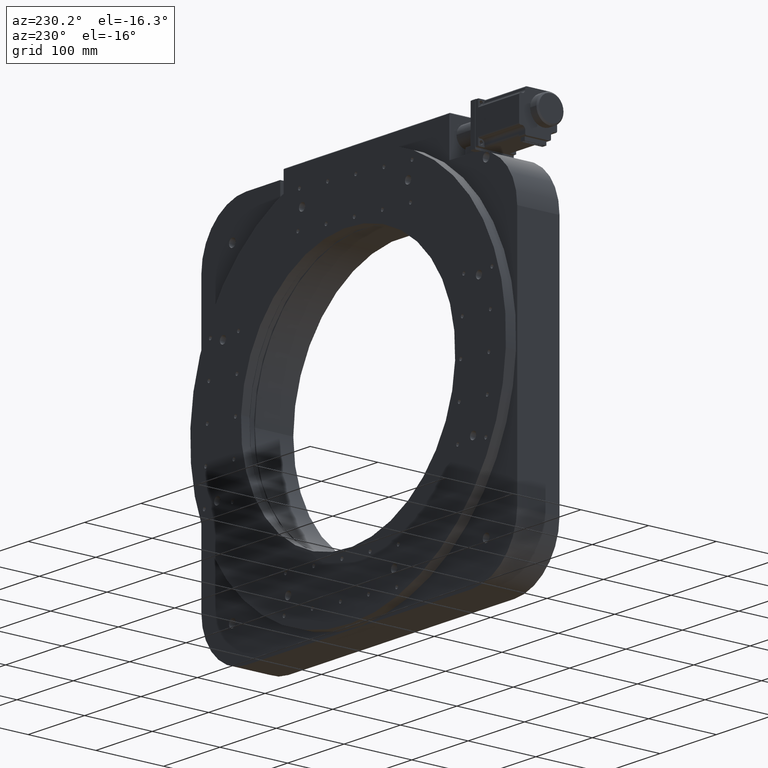
[diagram: clean part render]
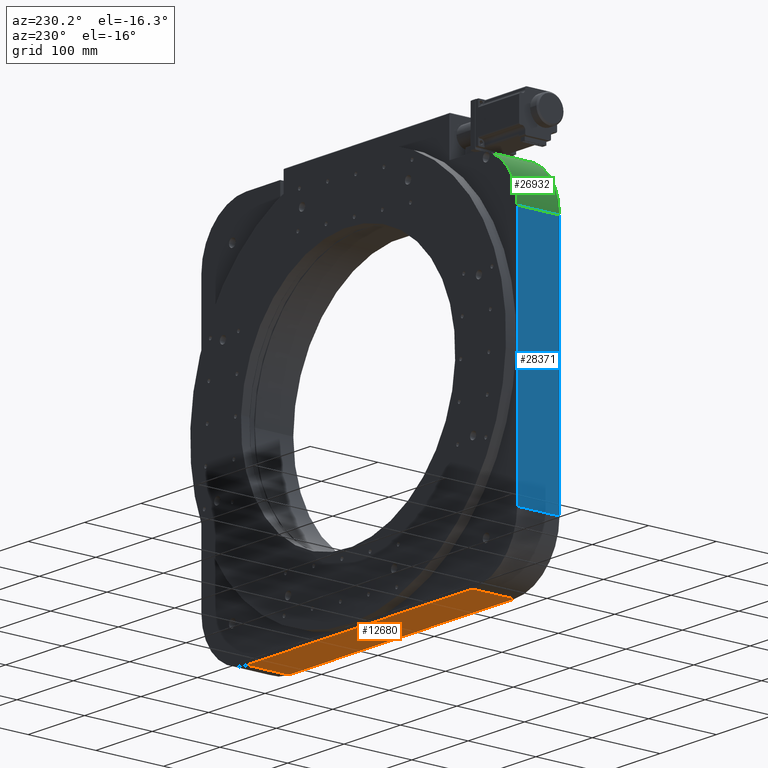
[diagram: same view with three faces highlighted in distinct colors, each labeled with its STEP entity id]
A machine part, auxiliary view with three faces highlighted in distinct colors.
Their STEP definitions:

[orange] entity #12680 — the highlighted planar face has unit normal (0, 0, 1).
#376 = VERTEX_POINT ( 'NONE', #27738 ) ;
#929 = VECTOR ( 'NONE', #2272, 1000.000000000000000 ) ;
#1546 = VECTOR ( 'NONE', #29178, 1000.000000000000000 ) ;
#1778 = VECTOR ( 'NONE', #16006, 1000.000000000000000 ) ;
#1845 = EDGE_LOOP ( 'NONE', ( #23185, #22961, #29122, #17484 ) ) ;
#2272 = DIRECTION ( 'NONE',  ( 0.0000000000000000000, -1.000000000000000000, 3.491481338843133400E-015 ) ) ;
#3675 = CARTESIAN_POINT ( 'NONE',  ( -41.99999999999990100, -1.998401444325281800E-012, -572.0000000000001100 ) ) ;
#4451 = CARTESIAN_POINT ( 'NONE',  ( -121.9999999999999400, 62.49999999999800300, -572.0000000000003400 ) ) ;
#4668 = DIRECTION ( 'NONE',  ( 0.0000000000000000000, -1.000000000000000000, 3.491481338843133400E-015 ) ) ;
#8458 = CARTESIAN_POINT ( 'NONE',  ( -121.9999999999999400, 62.49999999999800300, -572.0000000000003400 ) ) ;
#8720 = LINE ( 'NONE', #10609, #1778 ) ;
#8947 = CARTESIAN_POINT ( 'NONE',  ( 358.0000000000001100, 62.49999999999800300, -572.0000000000003400 ) ) ;
#10152 = EDGE_CURVE ( 'NONE', #10550, #12644, #8720, .T. ) ;
#10550 = VERTEX_POINT ( 'NONE', #15190 ) ;
#10609 = CARTESIAN_POINT ( 'NONE',  ( 158.0000000000001400, -1.998401444325281800E-012, -572.0000000000001100 ) ) ;
#12644 = VERTEX_POINT ( 'NONE', #3675 ) ;
#12680 = ADVANCED_FACE ( 'NONE', ( #20158 ), #27284, .F. ) ;
#12873 = EDGE_CURVE ( 'NONE', #32127, #12644, #20944, .T. ) ;
#13792 = LINE ( 'NONE', #8458, #1546 ) ;
#14198 = DIRECTION ( 'NONE',  ( -0.0000000000000000000, 1.000000000000000000, -3.491481338843133400E-015 ) ) ;
#15190 = CARTESIAN_POINT ( 'NONE',  ( 358.0000000000001100, -1.998401444325281800E-012, -572.0000000000001100 ) ) ;
#15279 = CARTESIAN_POINT ( 'NONE',  ( -41.99999999999990100, 62.49999999999800300, -572.0000000000003400 ) ) ;
#16006 = DIRECTION ( 'NONE',  ( -1.000000000000000000, -0.0000000000000000000, -0.0000000000000000000 ) ) ;
#16374 = EDGE_CURVE ( 'NONE', #10550, #376, #18873, .T. ) ;
#17484 = ORIENTED_EDGE ( 'NONE', *, *, #28470, .F. ) ;
#17599 = AXIS2_PLACEMENT_3D ( 'NONE', #4451, #19863, #4668 ) ;
#17756 = CARTESIAN_POINT ( 'NONE',  ( -41.99999999999990100, 62.49999999999800300, -572.0000000000003400 ) ) ;
#18873 = LINE ( 'NONE', #8947, #26187 ) ;
#19863 = DIRECTION ( 'NONE',  ( 0.0000000000000000000, 3.491481338843133400E-015, 1.000000000000000000 ) ) ;
#20158 = FACE_OUTER_BOUND ( 'NONE', #1845, .T. ) ;
#20944 = LINE ( 'NONE', #15279, #929 ) ;
#22961 = ORIENTED_EDGE ( 'NONE', *, *, #10152, .T. ) ;
#23185 = ORIENTED_EDGE ( 'NONE', *, *, #16374, .F. ) ;
#26187 = VECTOR ( 'NONE', #14198, 1000.000000000000000 ) ;
#27284 = PLANE ( 'NONE',  #17599 ) ;
#27738 = CARTESIAN_POINT ( 'NONE',  ( 358.0000000000001100, 62.49999999999800300, -572.0000000000003400 ) ) ;
#28470 = EDGE_CURVE ( 'NONE', #376, #32127, #13792, .T. ) ;
#29122 = ORIENTED_EDGE ( 'NONE', *, *, #12873, .F. ) ;
#29178 = DIRECTION ( 'NONE',  ( -1.000000000000000000, -0.0000000000000000000, -0.0000000000000000000 ) ) ;
#32127 = VERTEX_POINT ( 'NONE', #17756 ) ;

[blue] entity #28371 — the highlighted planar face has unit normal (1, -0, -0).
#22 = EDGE_CURVE ( 'NONE', #8938, #26531, #25710, .T. ) ;
#1492 = VERTEX_POINT ( 'NONE', #14072 ) ;
#2096 = DIRECTION ( 'NONE',  ( -0.0000000000000000000, -1.000000000000000000, 3.491481338843133400E-015 ) ) ;
#7461 = DIRECTION ( 'NONE',  ( 0.0000000000000000000, 1.000000000000000000, -3.491481338843133400E-015 ) ) ;
#7573 = CARTESIAN_POINT ( 'NONE',  ( -121.9999999999999400, 62.49999999999828000, -492.0000000000002300 ) ) ;
#8135 = CARTESIAN_POINT ( 'NONE',  ( -121.9999999999999400, 62.49999999999800300, -572.0000000000003400 ) ) ;
#8339 = EDGE_CURVE ( 'NONE', #1492, #21642, #21943, .T. ) ;
#8938 = VERTEX_POINT ( 'NONE', #23387 ) ;
#10616 = DIRECTION ( 'NONE',  ( 1.000000000000000000, -6.922005307915561500E-031, -1.982541115402065100E-016 ) ) ;
#11400 = VECTOR ( 'NONE', #2096, 1000.000000000000000 ) ;
#14072 = CARTESIAN_POINT ( 'NONE',  ( -121.9999999999999400, -1.665334536937734800E-012, -492.0000000000000600 ) ) ;
#14909 = VECTOR ( 'NONE', #15956, 1000.000000000000000 ) ;
#14971 = CARTESIAN_POINT ( 'NONE',  ( -121.9999999999998900, -4.440892098500626200E-013, -136.0000000000000000 ) ) ;
#15560 = PLANE ( 'NONE',  #20015 ) ;
#15610 = EDGE_CURVE ( 'NONE', #21642, #8938, #32795, .T. ) ;
#15956 = DIRECTION ( 'NONE',  ( -0.0000000000000000000, 3.491481338843133400E-015, 1.000000000000000000 ) ) ;
#20015 = AXIS2_PLACEMENT_3D ( 'NONE', #8135, #10616, #28745 ) ;
#20274 = CARTESIAN_POINT ( 'NONE',  ( -121.9999999999999400, 62.49999999999828000, -492.0000000000002300 ) ) ;
#20302 = ORIENTED_EDGE ( 'NONE', *, *, #8339, .F. ) ;
#20759 = CARTESIAN_POINT ( 'NONE',  ( -121.9999999999999400, 62.49999999999800300, -572.0000000000003400 ) ) ;
#21642 = VERTEX_POINT ( 'NONE', #20274 ) ;
#21943 = LINE ( 'NONE', #7573, #26388 ) ;
#23387 = CARTESIAN_POINT ( 'NONE',  ( -121.9999999999998900, 62.49999999999955900, -136.0000000000002300 ) ) ;
#23427 = VECTOR ( 'NONE', #25750, 1000.000000000000000 ) ;
#25466 = CARTESIAN_POINT ( 'NONE',  ( -121.9999999999998300, 62.49999999999955900, -136.0000000000002300 ) ) ;
#25710 = LINE ( 'NONE', #25466, #11400 ) ;
#25750 = DIRECTION ( 'NONE',  ( 1.982541115402065100E-016, 3.491481338843133400E-015, 1.000000000000000000 ) ) ;
#25819 = ORIENTED_EDGE ( 'NONE', *, *, #15610, .F. ) ;
#25985 = ORIENTED_EDGE ( 'NONE', *, *, #22, .F. ) ;
#26289 = CARTESIAN_POINT ( 'NONE',  ( -121.9999999999999400, -9.992007221626408900E-013, -291.9999999999998900 ) ) ;
#26388 = VECTOR ( 'NONE', #7461, 1000.000000000000000 ) ;
#26531 = VERTEX_POINT ( 'NONE', #14971 ) ;
#28371 = ADVANCED_FACE ( 'NONE', ( #33791 ), #15560, .F. ) ;
#28745 = DIRECTION ( 'NONE',  ( -1.982541115402065100E-016, -3.491481338843133400E-015, -1.000000000000000000 ) ) ;
#28768 = LINE ( 'NONE', #26289, #14909 ) ;
#30450 = EDGE_LOOP ( 'NONE', ( #25985, #25819, #20302, #31486 ) ) ;
#31486 = ORIENTED_EDGE ( 'NONE', *, *, #33471, .T. ) ;
#32795 = LINE ( 'NONE', #20759, #23427 ) ;
#33471 = EDGE_CURVE ( 'NONE', #1492, #26531, #28768, .T. ) ;
#33791 = FACE_OUTER_BOUND ( 'NONE', #30450, .T. ) ;

[green] entity #26932 — the highlighted cylindrical surface (partial cylindrical patch) has radius 80 mm, axis along (0, 1, -0).
#22 = EDGE_CURVE ( 'NONE', #8938, #26531, #25710, .T. ) ;
#1976 = ORIENTED_EDGE ( 'NONE', *, *, #27610, .T. ) ;
#2096 = DIRECTION ( 'NONE',  ( -0.0000000000000000000, -1.000000000000000000, 3.491481338843133400E-015 ) ) ;
#3413 = FACE_OUTER_BOUND ( 'NONE', #25748, .T. ) ;
#3516 = DIRECTION ( 'NONE',  ( -0.0000000000000000000, -1.000000000000000000, 3.491481338843133400E-015 ) ) ;
#5005 = DIRECTION ( 'NONE',  ( 0.0000000000000000000, 1.000000000000000000, -3.491481338843133400E-015 ) ) ;
#5419 = CARTESIAN_POINT ( 'NONE',  ( -41.99999999999984400, 62.49999999999983700, -56.00000000000021300 ) ) ;
#5508 = AXIS2_PLACEMENT_3D ( 'NONE', #29171, #31920, #24198 ) ;
#6851 = DIRECTION ( 'NONE',  ( 0.0000000000000000000, 1.000000000000000000, -3.491481338843133400E-015 ) ) ;
#8938 = VERTEX_POINT ( 'NONE', #23387 ) ;
#11400 = VECTOR ( 'NONE', #2096, 1000.000000000000000 ) ;
#11454 = VERTEX_POINT ( 'NONE', #30175 ) ;
#11720 = LINE ( 'NONE', #25626, #33307 ) ;
#12120 = ORIENTED_EDGE ( 'NONE', *, *, #22, .T. ) ;
#12847 = ORIENTED_EDGE ( 'NONE', *, *, #30604, .T. ) ;
#14487 = CARTESIAN_POINT ( 'NONE',  ( -41.99999999999984400, -4.440892098500626200E-013, -136.0000000000000000 ) ) ;
#14971 = CARTESIAN_POINT ( 'NONE',  ( -121.9999999999998900, -4.440892098500626200E-013, -136.0000000000000000 ) ) ;
#17926 = VERTEX_POINT ( 'NONE', #5419 ) ;
#19177 = CARTESIAN_POINT ( 'NONE',  ( -41.99999999999984400, 62.49999999999955900, -136.0000000000002300 ) ) ;
#19684 = AXIS2_PLACEMENT_3D ( 'NONE', #14487, #6851, #32683 ) ;
#20406 = AXIS2_PLACEMENT_3D ( 'NONE', #19177, #3516, #24393 ) ;
#21128 = EDGE_CURVE ( 'NONE', #26531, #11454, #21303, .T. ) ;
#21303 = CIRCLE ( 'NONE', #19684, 80.00000000000000000 ) ;
#23387 = CARTESIAN_POINT ( 'NONE',  ( -121.9999999999998900, 62.49999999999955900, -136.0000000000002300 ) ) ;
#23557 = ORIENTED_EDGE ( 'NONE', *, *, #21128, .T. ) ;
#24198 = DIRECTION ( 'NONE',  ( 1.000000000000000000, 0.0000000000000000000, 0.0000000000000000000 ) ) ;
#24393 = DIRECTION ( 'NONE',  ( 1.000000000000000000, 0.0000000000000000000, 0.0000000000000000000 ) ) ;
#25466 = CARTESIAN_POINT ( 'NONE',  ( -121.9999999999998300, 62.49999999999955900, -136.0000000000002300 ) ) ;
#25626 = CARTESIAN_POINT ( 'NONE',  ( -41.99999999999984400, -2.220446049250313100E-013, -55.99999999999999300 ) ) ;
#25710 = LINE ( 'NONE', #25466, #11400 ) ;
#25748 = EDGE_LOOP ( 'NONE', ( #1976, #12120, #23557, #12847 ) ) ;
#26531 = VERTEX_POINT ( 'NONE', #14971 ) ;
#26932 = ADVANCED_FACE ( 'NONE', ( #3413 ), #30307, .T. ) ;
#27610 = EDGE_CURVE ( 'NONE', #17926, #8938, #33085, .T. ) ;
#29171 = CARTESIAN_POINT ( 'NONE',  ( -41.99999999999984400, 62.49999999999955900, -136.0000000000002300 ) ) ;
#30175 = CARTESIAN_POINT ( 'NONE',  ( -41.99999999999984400, -2.220446049250313100E-013, -55.99999999999999300 ) ) ;
#30307 = CYLINDRICAL_SURFACE ( 'NONE', #5508, 80.00000000000000000 ) ;
#30604 = EDGE_CURVE ( 'NONE', #11454, #17926, #11720, .T. ) ;
#31920 = DIRECTION ( 'NONE',  ( 0.0000000000000000000, 1.000000000000000000, -3.491481338843133400E-015 ) ) ;
#32683 = DIRECTION ( 'NONE',  ( 1.000000000000000000, 0.0000000000000000000, 0.0000000000000000000 ) ) ;
#33085 = CIRCLE ( 'NONE', #20406, 80.00000000000000000 ) ;
#33307 = VECTOR ( 'NONE', #5005, 1000.000000000000000 ) ;